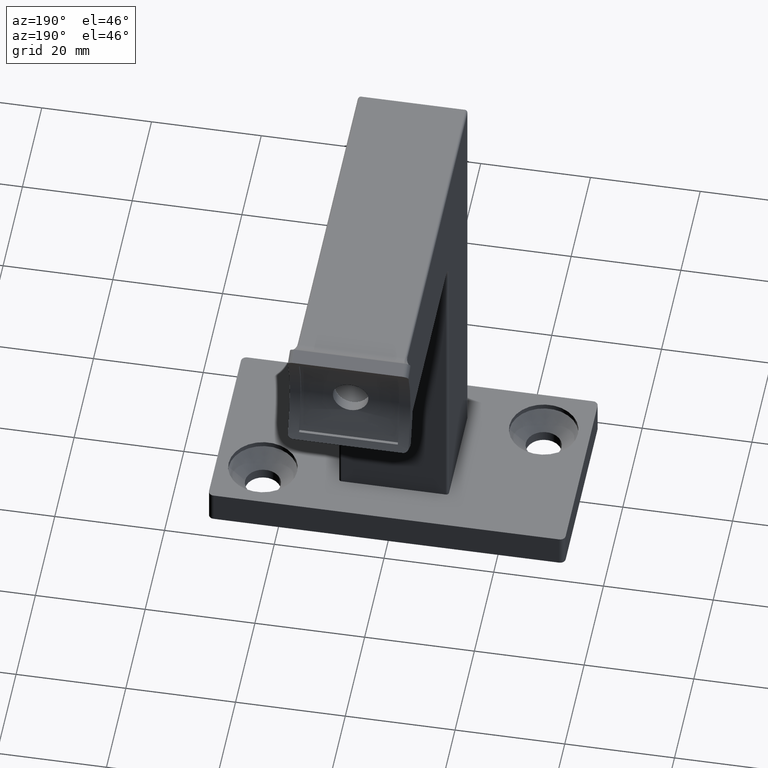
[diagram: clean part render]
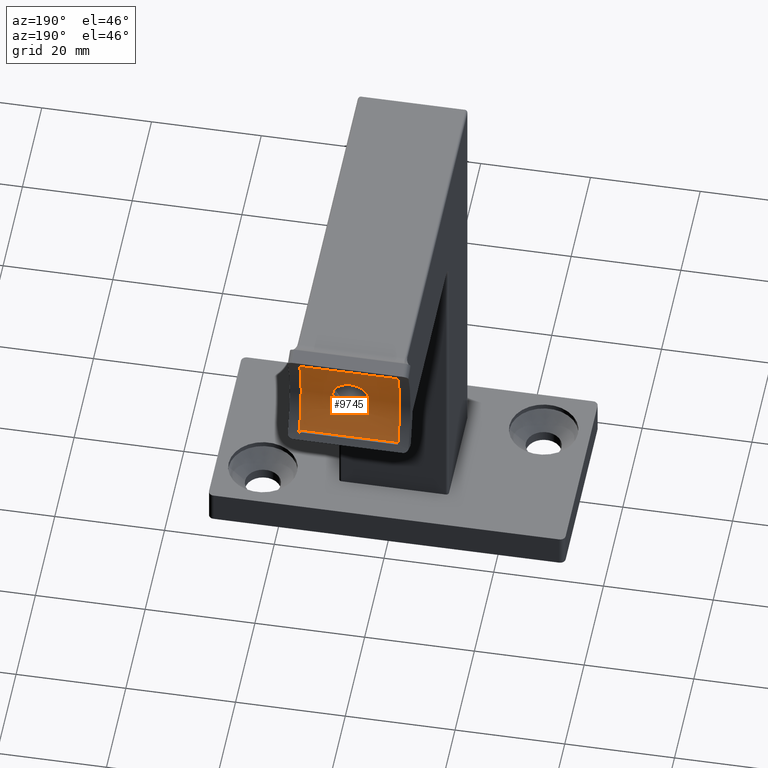
[diagram: same view with one face highlighted and labeled with its STEP entity id]
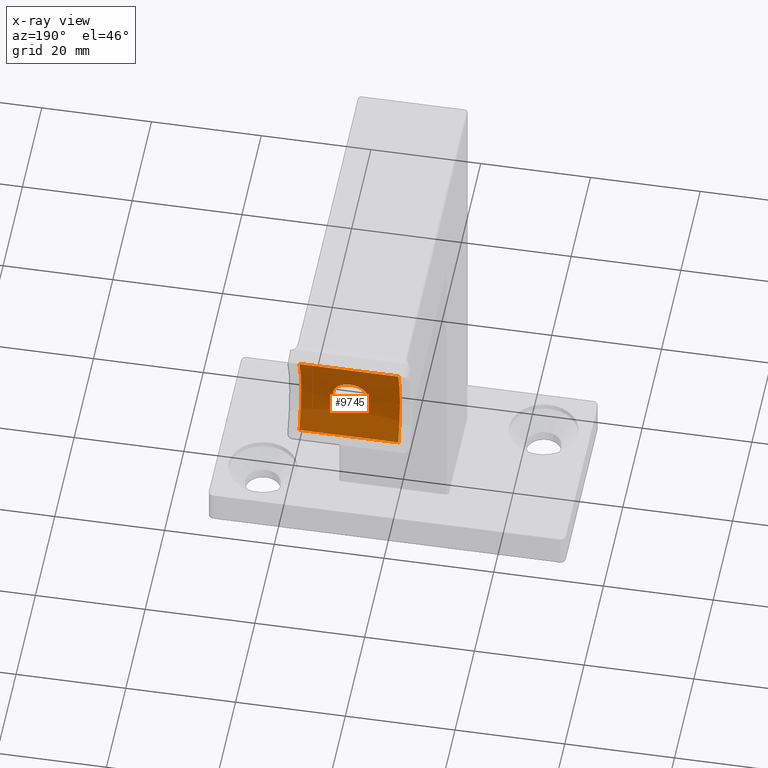
[diagram: x-ray of the same camera — body ghosted, the highlighted face saturated]
A machine part, auxiliary view. The second image highlights one B-rep face of the part: STEP entity #9745.
The next image is the same camera in x-ray: the body ghosted, the highlighted face saturated — about 0% of this face is hidden behind the body in this view.
In plain terms, the highlighted cylindrical surface (partial cylindrical patch) has radius 21.7 mm, axis along (1, -0, -0).
Its self-contained STEP definition (entity closure, byte-faithful):
#128 = CARTESIAN_POINT ( 'NONE',  ( 9.000000000000000000, 56.23402894923466988, 83.49999999999998579 ) ) ;
#311 = CARTESIAN_POINT ( 'NONE',  ( -0.8461391462918008699, 54.72908923732911290, 71.85488156153917316 ) ) ;
#342 = VERTEX_POINT ( 'NONE', #14133 ) ;
#356 = CARTESIAN_POINT ( 'NONE',  ( 1.982497227833945885, 54.65408276936177856, 72.41587353156931783 ) ) ;
#464 = CARTESIAN_POINT ( 'NONE',  ( -9.000000000000000000, 76.20000000000000284, 75.00000000000000000 ) ) ;
#512 = CARTESIAN_POINT ( 'NONE',  ( -3.082995084914969208, 54.52453209947321966, 76.04996370352948531 ) ) ;
#614 = CARTESIAN_POINT ( 'NONE',  ( 1.987005812900195512, 54.65366981513023603, 77.58070879251330609 ) ) ;
#684 = ORIENTED_EDGE ( 'NONE', *, *, #14677, .T. ) ;
#1112 = CARTESIAN_POINT ( 'NONE',  ( -9.000000000000000000, 56.23402894923466988, 83.49999999999998579 ) ) ;
#1427 = LINE ( 'NONE', #9922, #3446 ) ;
#1438 = CARTESIAN_POINT ( 'NONE',  ( -0.2134939848394651341, 54.74474347749200120, 71.75008191484729991 ) ) ;
#1484 = CARTESIAN_POINT ( 'NONE',  ( -1.048749719491563370, 54.72003700559411499, 78.08350136119207718 ) ) ;
#1527 = CARTESIAN_POINT ( 'NONE',  ( 2.818963774845565595, 54.56067543009906728, 73.36877229807305412 ) ) ;
#1583 = CARTESIAN_POINT ( 'NONE',  ( -1.442174115575771909, 54.69723737640789807, 77.92027232274151061 ) ) ;
#1737 = CARTESIAN_POINT ( 'NONE',  ( 2.921577233331388523, 54.54690284479792695, 76.43950819314687806 ) ) ;
#1844 = EDGE_CURVE ( 'NONE', #10396, #2900, #1427, .T. ) ;
#2044 = EDGE_CURVE ( 'NONE', #12052, #10396, #13145, .T. ) ;
#2616 = DIRECTION ( 'NONE',  ( 1.000000000000000000, -0.000000000000000000, -0.000000000000000000 ) ) ;
#2630 = CARTESIAN_POINT ( 'NONE',  ( -0.4264150230453674917, 54.74152494726433105, 78.22886937975478361 ) ) ;
#2681 = CARTESIAN_POINT ( 'NONE',  ( -3.228952188364855314, 54.50318120767062169, 74.57388592378727310 ) ) ;
#2729 = CARTESIAN_POINT ( 'NONE',  ( -0.4290979284606215027, 54.74147762412568596, 71.77144050471036962 ) ) ;
#2828 = CARTESIAN_POINT ( 'NONE',  ( -2.584789755695247493, 54.58993197118689977, 73.01855636270204286 ) ) ;
#2849 = DIRECTION ( 'NONE',  ( 0.000000000000000000, 0.000000000000000000, -1.000000000000000000 ) ) ;
#2900 = VERTEX_POINT ( 'NONE', #5408 ) ;
#3038 = CARTESIAN_POINT ( 'NONE',  ( 1.052691586502900067, 54.71983222405250302, 78.08206520545296314 ) ) ;
#3221 = EDGE_LOOP ( 'NONE', ( #8387, #6675, #7475, #4685 ) ) ;
#3446 = VECTOR ( 'NONE', #7667, 1000.000000000000000 ) ;
#3798 = CARTESIAN_POINT ( 'NONE',  ( -1.048705097901128314, 54.72003828923040203, 71.91649109025647135 ) ) ;
#3843 = CARTESIAN_POINT ( 'NONE',  ( -2.820028963976052072, 54.56054136045518987, 76.62959575426040715 ) ) ;
#3933 = CARTESIAN_POINT ( 'NONE',  ( -2.819852172797983059, 54.56055757637880532, 73.37037099544031094 ) ) ;
#3962 = AXIS2_PLACEMENT_3D ( 'NONE', #464, #13192, #6308 ) ;
#3987 = CARTESIAN_POINT ( 'NONE',  ( -2.448006991670844457, 54.60606346079337214, 77.14815404288711420 ) ) ;
#4061 = DIRECTION ( 'NONE',  ( 1.000000000000000000, 0.000000000000000000, 0.000000000000000000 ) ) ;
#4142 = CARTESIAN_POINT ( 'NONE',  ( 3.145383989115011936, 54.51546052918565266, 74.15504300112905867 ) ) ;
#4685 = ORIENTED_EDGE ( 'NONE', *, *, #14945, .T. ) ;
#4959 = CARTESIAN_POINT ( 'NONE',  ( 1.627717734214351175, 54.68382656991678203, 72.17891158576381372 ) ) ;
#5007 = CARTESIAN_POINT ( 'NONE',  ( -1.632054864844967978, 54.68348512350658552, 72.18155095010153843 ) ) ;
#5051 = EDGE_CURVE ( 'NONE', #10343, #2900, #5198, .T. ) ;
#5058 = CARTESIAN_POINT ( 'NONE',  ( -2.582429595415102863, 54.59022097590573708, 76.98474256887169531 ) ) ;
#5148 = CARTESIAN_POINT ( 'NONE',  ( -1.983671463191255535, 54.65396180681058524, 72.41691934797648855 ) ) ;
#5198 = CIRCLE ( 'NONE', #11227, 21.69999999999998153 ) ;
#5206 = CARTESIAN_POINT ( 'NONE',  ( 9.419006373467819770E-15, 54.74475588579801411, 78.25000000000001421 ) ) ;
#5301 = CARTESIAN_POINT ( 'NONE',  ( 2.449358979495102062, 54.60590911590069396, 77.14660509809759503 ) ) ;
#5408 = CARTESIAN_POINT ( 'NONE',  ( 9.000000000000000000, 56.23402894923466988, 66.50000000000001421 ) ) ;
#5692 = CARTESIAN_POINT ( 'NONE',  ( -9.000000000000000000, 56.23402894923466988, 83.49999999999998579 ) ) ;
#6100 = CARTESIAN_POINT ( 'NONE',  ( -3.145555313957852928, 54.51543617131554953, 75.84484090762688879 ) ) ;
#6150 = CARTESIAN_POINT ( 'NONE',  ( 0.2109926938417849285, 54.74476822120271891, 71.74991856641860011 ) ) ;
#6239 = CARTESIAN_POINT ( 'NONE',  ( -0.8421838127487604186, 54.72923859311326567, 78.14613312956409175 ) ) ;
#6298 = CARTESIAN_POINT ( 'NONE',  ( -2.920806893943609595, 54.54700568224188828, 76.44089193232210278 ) ) ;
#6308 = DIRECTION ( 'NONE',  ( 0.000000000000000000, 0.000000000000000000, -1.000000000000000000 ) ) ;
#6352 = CARTESIAN_POINT ( 'NONE',  ( 3.250180754438818820, 54.49997292849220543, 75.21206601372766443 ) ) ;
#6401 = CARTESIAN_POINT ( 'NONE',  ( 2.150345824297450026, 54.63777866581504838, 77.44607556987484998 ) ) ;
#6460 = CARTESIAN_POINT ( 'NONE',  ( 0.4275220451248401554, 54.74152326467527985, 78.22886658072435750 ) ) ;
#6537 = VECTOR ( 'NONE', #2616, 1000.000000000000000 ) ;
#6560 = CARTESIAN_POINT ( 'NONE',  ( 1.631643482393197342, 54.68353159116099960, 77.81886316067638631 ) ) ;
#6675 = ORIENTED_EDGE ( 'NONE', *, *, #1844, .F. ) ;
#7284 = CARTESIAN_POINT ( 'NONE',  ( -3.145916042952215275, 54.51538330470801696, 74.15684064887548743 ) ) ;
#7328 = CARTESIAN_POINT ( 'NONE',  ( 2.583117428036434848, 54.59013404195545860, 73.01632539654312382 ) ) ;
#7436 = CARTESIAN_POINT ( 'NONE',  ( 2.145990357379198077, 54.63821554650853329, 72.55008138971845710 ) ) ;
#7460 = CARTESIAN_POINT ( 'NONE',  ( 9.000000000000000000, 76.20000000000000284, 75.00000000000000000 ) ) ;
#7466 = B_SPLINE_CURVE_WITH_KNOTS ( 'NONE', 3,
 ( #9739, #13030, #2630, #6239, #1484, #1583, #9589, #8537, #9685, #3987, #5058, #3843, #6298, #512, #6100, #10830, #7484, #11843, #2681, #7284, #10731, #11894, #3933, #2828, #8586, #11983, #5148, #5007, #14351, #3798, #311, #2729, #1438, #6150, #10880, #9539, #13130, #14302, #4959, #356, #7436, #12983, #7328, #1527, #9639, #13079, #4142, #8793, #13339, #6352, #12185, #7691, #9952, #1737, #8843, #12241, #5301, #6401, #614, #6560, #11027, #3038, #10982, #6460, #11126, #5206 ),
 .UNSPECIFIED., .T., .F.,
 ( 4, 2, 2, 2, 2, 2, 2, 2, 2, 2, 2, 2, 2, 2, 2, 2, 2, 2, 2, 2, 2, 2, 2, 2, 2, 2, 2, 2, 2, 2, 2, 2, 4 ),
 ( 0.000000000000000000, 0.0006358774262752373008, 0.001271754852550474602, 0.001907632278825711902, 0.002543509705100949637, 0.003179387131376187371, 0.003815264557651425539, 0.004451141983926662840, 0.005087019410201901008, 0.005722896836477138309, 0.006358774262752374742, 0.006994651689027612043, 0.007630529115302850211, 0.008266406541578088379, 0.008902283967853327415, 0.009538161394128566450, 0.01017403882040380722, 0.01080991624667904626, 0.01144579367295428703, 0.01208167109922952606, 0.01271754852550476510, 0.01335342595178000587, 0.01398930337805524490, 0.01462518080433048567, 0.01526105823060572471, 0.01589693565688096374, 0.01653281308315620451, 0.01716869050943144182, 0.01780456793570668259, 0.01844044536198192336, 0.01907632278825716066, 0.01971220021453240143, 0.02034807764080763873 ),
 .UNSPECIFIED. ) ;
#7475 = ORIENTED_EDGE ( 'NONE', *, *, #2044, .F. ) ;
#7484 = CARTESIAN_POINT ( 'NONE',  ( -3.249879380778188054, 54.50001806508803526, 75.21412139522313112 ) ) ;
#7667 = DIRECTION ( 'NONE',  ( 1.000000000000000000, -0.000000000000000000, -0.000000000000000000 ) ) ;
#7691 = CARTESIAN_POINT ( 'NONE',  ( 3.146890316394460374, 54.51524132736334138, 75.83936601429743973 ) ) ;
#7721 = FACE_BOUND ( 'NONE', #11316, .T. ) ;
#8002 = LINE ( 'NONE', #1112, #6537 ) ;
#8081 = FACE_OUTER_BOUND ( 'NONE', #3221, .T. ) ;
#8387 = ORIENTED_EDGE ( 'NONE', *, *, #5051, .T. ) ;
#8537 = CARTESIAN_POINT ( 'NONE',  ( -1.981771453571944175, 54.65414248104212191, 77.58459804908632407 ) ) ;
#8586 = CARTESIAN_POINT ( 'NONE',  ( -2.450239034191855847, 54.60582222414443976, 72.85414489751508427 ) ) ;
#8719 = DIRECTION ( 'NONE',  ( 0.000000000000000000, 0.000000000000000000, -1.000000000000000000 ) ) ;
#8793 = CARTESIAN_POINT ( 'NONE',  ( 3.228465380286185127, 54.50325369245353357, 74.57057706486999393 ) ) ;
#8843 = CARTESIAN_POINT ( 'NONE',  ( 2.821916331324715088, 54.56029021967758297, 76.62616781261770882 ) ) ;
#9213 = CARTESIAN_POINT ( 'NONE',  ( -9.000000000000000000, 56.23402894923466988, 66.50000000000001421 ) ) ;
#9539 = CARTESIAN_POINT ( 'NONE',  ( 0.8422347478988095881, 54.72925758725781975, 71.85373340112072071 ) ) ;
#9589 = CARTESIAN_POINT ( 'NONE',  ( -1.628722325135637083, 54.68374348206830859, 77.82043059782336059 ) ) ;
#9639 = CARTESIAN_POINT ( 'NONE',  ( 2.918984437742180749, 54.54725424810531109, 73.55519243018362374 ) ) ;
#9685 = CARTESIAN_POINT ( 'NONE',  ( -2.148693977344443784, 54.63794437359254630, 77.44753308761400490 ) ) ;
#9739 = CARTESIAN_POINT ( 'NONE',  ( 9.419006373467819770E-15, 54.74475588579801411, 78.25000000000001421 ) ) ;
#9745 = ADVANCED_FACE ( 'NONE', ( #7721, #8081 ), #14542, .F. ) ;
#9922 = CARTESIAN_POINT ( 'NONE',  ( -9.000000000000000000, 56.23402894923466988, 66.50000000000001421 ) ) ;
#9952 = CARTESIAN_POINT ( 'NONE',  ( 3.084358021129951943, 54.52433928839060684, 76.04619929552096380 ) ) ;
#10343 = VERTEX_POINT ( 'NONE', #128 ) ;
#10396 = VERTEX_POINT ( 'NONE', #9213 ) ;
#10731 = CARTESIAN_POINT ( 'NONE',  ( -3.084481434617352136, 54.52432213083656620, 73.95410507126936750 ) ) ;
#10830 = CARTESIAN_POINT ( 'NONE',  ( -3.229162188493845509, 54.50315049029651959, 75.42518931403544968 ) ) ;
#10880 = CARTESIAN_POINT ( 'NONE',  ( 0.4221495794875668728, 54.74163028906393436, 71.77042686809394922 ) ) ;
#10982 = CARTESIAN_POINT ( 'NONE',  ( 0.8474753268518041560, 54.72905071658389886, 78.14485930775350653 ) ) ;
#11027 = CARTESIAN_POINT ( 'NONE',  ( 1.443489025024698558, 54.69713719822571818, 77.91952478009534389 ) ) ;
#11126 = CARTESIAN_POINT ( 'NONE',  ( 0.2150348862360211000, 54.74475588579800700, 78.25000000000002842 ) ) ;
#11227 = AXIS2_PLACEMENT_3D ( 'NONE', #7460, #4061, #8719 ) ;
#11316 = EDGE_LOOP ( 'NONE', ( #684 ) ) ;
#11437 = AXIS2_PLACEMENT_3D ( 'NONE', #14321, #14224, #2849 ) ;
#11843 = CARTESIAN_POINT ( 'NONE',  ( -3.250119578981800927, 54.49998209070831479, 74.78955598412244399 ) ) ;
#11894 = CARTESIAN_POINT ( 'NONE',  ( -2.921481366305575200, 54.54691618404175557, 73.56025399852164526 ) ) ;
#11983 = CARTESIAN_POINT ( 'NONE',  ( -2.147467662689436008, 54.63807847493932712, 72.55117414191181524 ) ) ;
#12052 = VERTEX_POINT ( 'NONE', #5692 ) ;
#12185 = CARTESIAN_POINT ( 'NONE',  ( 3.229270520316458892, 54.50313321881574069, 75.42339801132017385 ) ) ;
#12241 = CARTESIAN_POINT ( 'NONE',  ( 2.586208205231817381, 54.58976398841529942, 76.97968700934833919 ) ) ;
#12983 = CARTESIAN_POINT ( 'NONE',  ( 2.445859032732684568, 54.60630877749562018, 72.84938394803525341 ) ) ;
#13030 = CARTESIAN_POINT ( 'NONE',  ( -0.2150348862360030311, 54.74475588579802121, 78.25000000000000000 ) ) ;
#13079 = CARTESIAN_POINT ( 'NONE',  ( 3.082692785595419149, 54.52457789894795326, 73.94883671524462443 ) ) ;
#13130 = CARTESIAN_POINT ( 'NONE',  ( 1.047080842333821815, 54.72010857116011096, 71.91601786158989285 ) ) ;
#13145 = CIRCLE ( 'NONE', #3962, 21.69999999999998153 ) ;
#13192 = DIRECTION ( 'NONE',  ( 1.000000000000000000, 0.000000000000000000, 0.000000000000000000 ) ) ;
#13339 = CARTESIAN_POINT ( 'NONE',  ( 3.249816914784394495, 54.50002742058724436, 74.78242943424243094 ) ) ;
#14133 = CARTESIAN_POINT ( 'NONE',  ( 9.184850993605150311E-15, 54.74475588579800700, 78.25000000000000000 ) ) ;
#14224 = DIRECTION ( 'NONE',  ( 1.000000000000000000, -0.000000000000000000, -0.000000000000000000 ) ) ;
#14302 = CARTESIAN_POINT ( 'NONE',  ( 1.438337574880417691, 54.69748450800049255, 72.07792725259925248 ) ) ;
#14321 = CARTESIAN_POINT ( 'NONE',  ( -9.000000000000000000, 76.20000000000000284, 75.00000000000000000 ) ) ;
#14351 = CARTESIAN_POINT ( 'NONE',  ( -1.441933187885345413, 54.69725263990463304, 72.07961676136393692 ) ) ;
#14542 = CYLINDRICAL_SURFACE ( 'NONE', #11437, 21.69999999999998153 ) ;
#14677 = EDGE_CURVE ( 'NONE', #342, #342, #7466, .T. ) ;
#14945 = EDGE_CURVE ( 'NONE', #12052, #10343, #8002, .T. ) ;